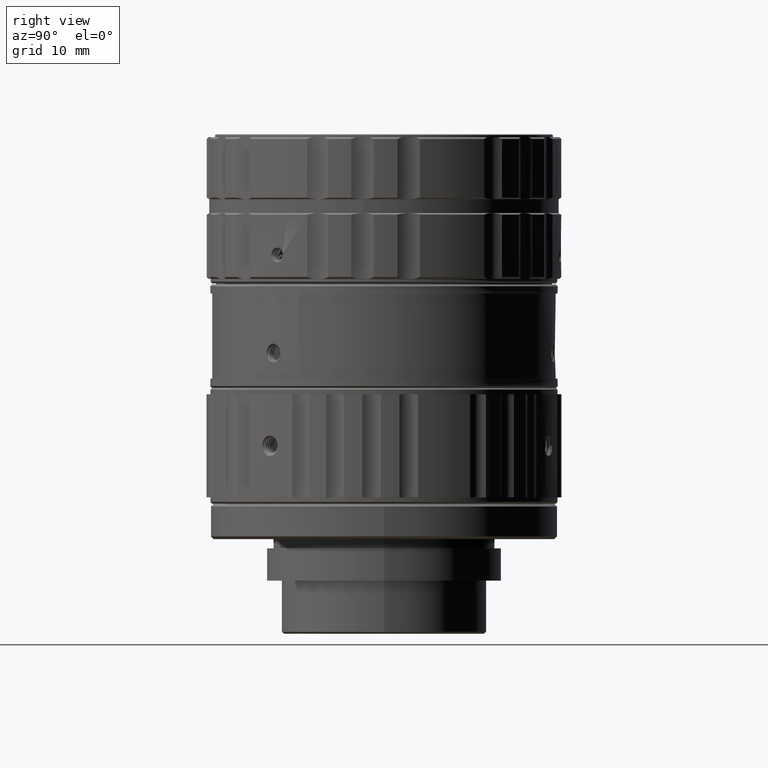
[diagram: clean part render]
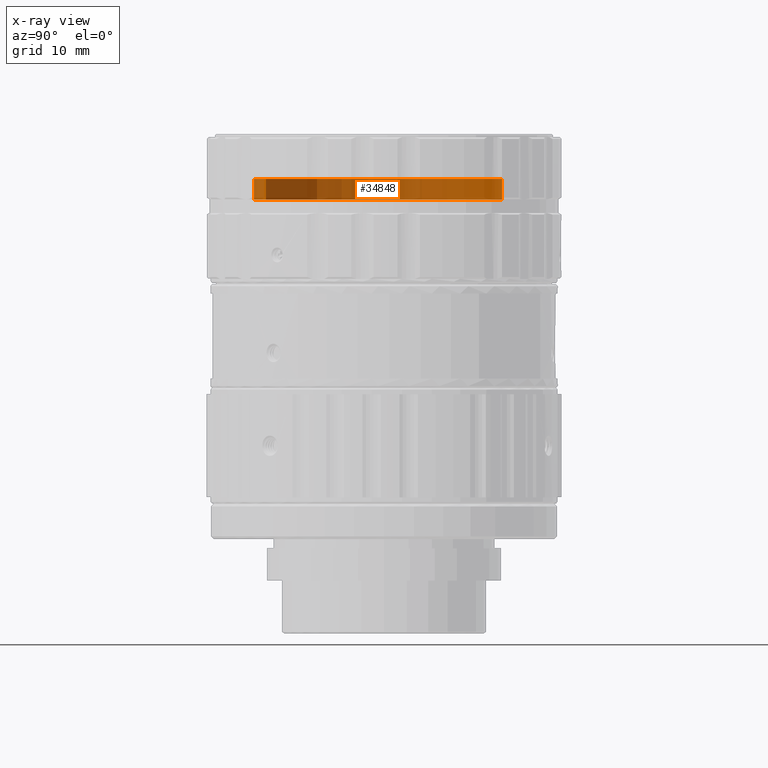
[diagram: x-ray — body ghosted, one internal face saturated and labeled with its STEP entity id]
A machine part, right view, then the same camera in x-ray: the body is ghosted and one INTERNAL B-rep face — a face not visible from any outside direction — is saturated and labeled: STEP entity #34848.
In plain terms, the highlighted cylindrical surface (partial cylindrical patch) has radius 14.15 mm, axis along (0, 0, 1).
Its self-contained STEP definition (entity closure, byte-faithful):
#1033 = CARTESIAN_POINT ( 'NONE',  ( -5.980048389756086102, 12.82425515681462969, 35.15447766078999337 ) ) ;
#1353 = CIRCLE ( 'NONE', #33668, 14.14999996717000030 ) ;
#2704 = CARTESIAN_POINT ( 'NONE',  ( 5.980048389756086102, -12.82425515681462613, 9.936977664030999691 ) ) ;
#5535 = EDGE_CURVE ( 'NONE', #33436, #18705, #1353, .T. ) ;
#6132 = CARTESIAN_POINT ( 'NONE',  ( 0.000000000000000000, 0.000000000000000000, 9.936977664030999691 ) ) ;
#8486 = EDGE_CURVE ( 'NONE', #33436, #31586, #23197, .T. ) ;
#8976 = EDGE_CURVE ( 'NONE', #22338, #31586, #41703, .T. ) ;
#11742 = DIRECTION ( 'NONE',  ( 0.4226182617406816222, -0.9063077870366582633, 0.000000000000000000 ) ) ;
#11881 = CARTESIAN_POINT ( 'NONE',  ( 0.000000000000000000, 0.000000000000000000, 35.15447766078999337 ) ) ;
#12097 = CYLINDRICAL_SURFACE ( 'NONE', #21588, 14.14999996716999675 ) ;
#12918 = DIRECTION ( 'NONE',  ( 1.000000000000000000, 0.000000000000000000, 0.000000000000000000 ) ) ;
#13757 = DIRECTION ( 'NONE',  ( 0.000000000000000000, 0.000000000000000000, 1.000000000000000000 ) ) ;
#15236 = CARTESIAN_POINT ( 'NONE',  ( 5.980048389756087879, -12.82425515681462969, 35.15447766078999337 ) ) ;
#17746 = LINE ( 'NONE', #2704, #58562 ) ;
#18705 = VERTEX_POINT ( 'NONE', #15236 ) ;
#18762 = DIRECTION ( 'NONE',  ( 0.000000000000000000, 0.000000000000000000, 1.000000000000000000 ) ) ;
#18824 = DIRECTION ( 'NONE',  ( 0.000000000000000000, 0.000000000000000000, -1.000000000000000000 ) ) ;
#21588 = AXIS2_PLACEMENT_3D ( 'NONE', #6132, #23230, #11742 ) ;
#22338 = VERTEX_POINT ( 'NONE', #22416 ) ;
#22416 = CARTESIAN_POINT ( 'NONE',  ( 5.980048389680225895, -12.82425515665197047, 37.40447766066999691 ) ) ;
#23197 = LINE ( 'NONE', #23861, #54404 ) ;
#23230 = DIRECTION ( 'NONE',  ( 0.000000000000000000, 0.000000000000000000, 1.000000000000000000 ) ) ;
#23861 = CARTESIAN_POINT ( 'NONE',  ( -5.980048389756084326, 12.82425515681462613, 9.936977664030999691 ) ) ;
#28934 = EDGE_CURVE ( 'NONE', #18705, #22338, #17746, .T. ) ;
#29149 = CARTESIAN_POINT ( 'NONE',  ( -5.980048389680225007, 12.82425515665197047, 37.40447766066999691 ) ) ;
#30634 = CARTESIAN_POINT ( 'NONE',  ( 0.000000000000000000, 0.000000000000000000, 37.40447766066999691 ) ) ;
#31586 = VERTEX_POINT ( 'NONE', #29149 ) ;
#31876 = ORIENTED_EDGE ( 'NONE', *, *, #5535, .T. ) ;
#32802 = EDGE_LOOP ( 'NONE', ( #36507, #31876, #64075, #34546 ) ) ;
#33436 = VERTEX_POINT ( 'NONE', #1033 ) ;
#33668 = AXIS2_PLACEMENT_3D ( 'NONE', #11881, #54450, #12918 ) ;
#33671 = FACE_OUTER_BOUND ( 'NONE', #32802, .T. ) ;
#34546 = ORIENTED_EDGE ( 'NONE', *, *, #8976, .T. ) ;
#34848 = ADVANCED_FACE ( 'NONE', ( #33671 ), #12097, .T. ) ;
#36507 = ORIENTED_EDGE ( 'NONE', *, *, #8486, .F. ) ;
#41703 = CIRCLE ( 'NONE', #56192, 14.14999996717000563 ) ;
#51953 = DIRECTION ( 'NONE',  ( 0.4226182617408008046, -0.9063077870366027522, 0.000000000000000000 ) ) ;
#54404 = VECTOR ( 'NONE', #13757, 1000.000000000000000 ) ;
#54450 = DIRECTION ( 'NONE',  ( 0.000000000000000000, 0.000000000000000000, 1.000000000000000000 ) ) ;
#56192 = AXIS2_PLACEMENT_3D ( 'NONE', #30634, #18824, #51953 ) ;
#58562 = VECTOR ( 'NONE', #18762, 1000.000000000000000 ) ;
#64075 = ORIENTED_EDGE ( 'NONE', *, *, #28934, .T. ) ;